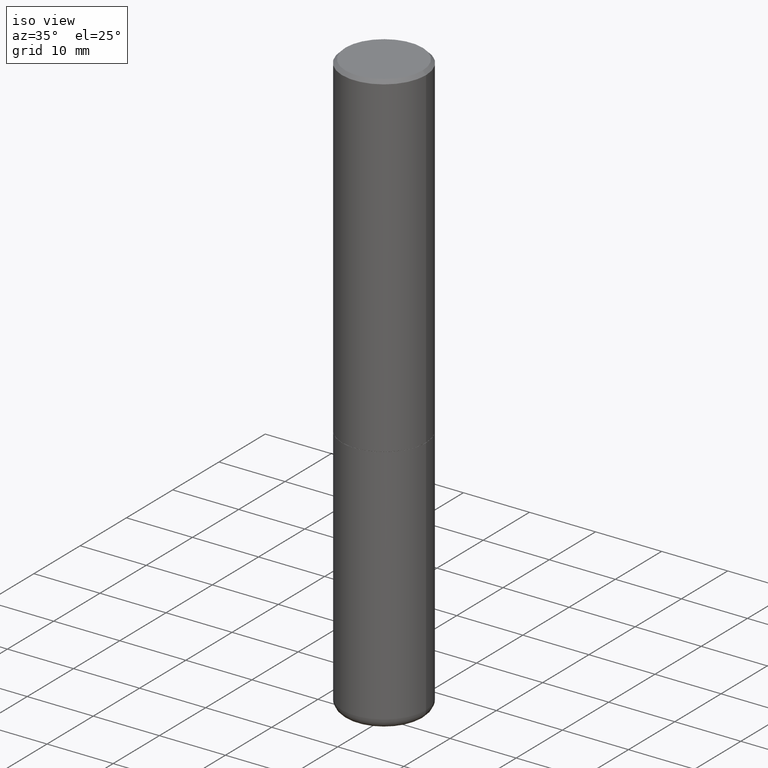
[diagram: clean part render]
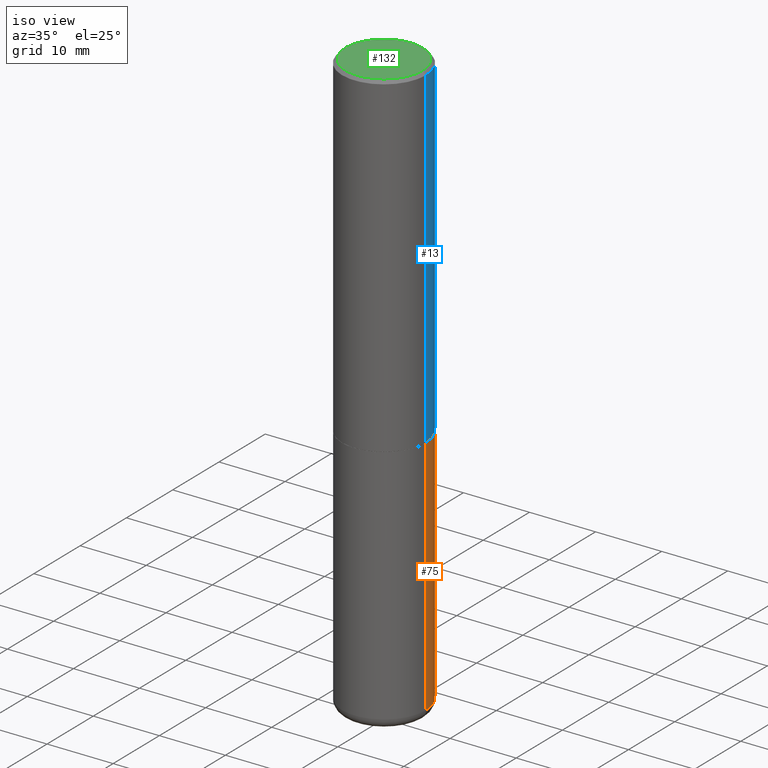
[diagram: same view with three faces highlighted in distinct colors, each labeled with its STEP entity id]
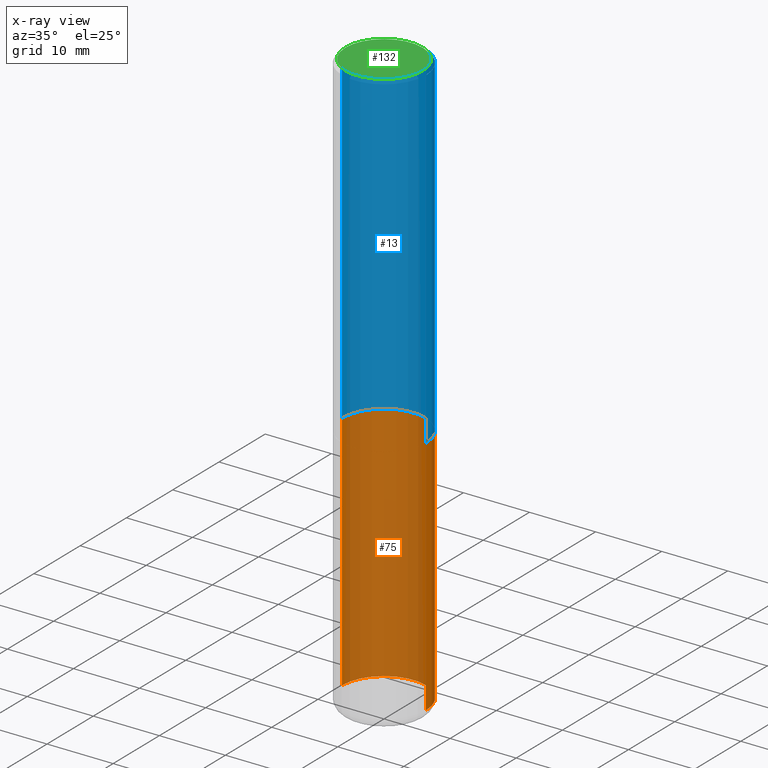
[diagram: x-ray of the same camera — body ghosted, the three highlighted faces saturated]
A machine part, iso view with three faces highlighted in distinct colors.
The next image is the same camera in x-ray (body ghosted, the three faces saturated) — at least one of them is partly hidden behind the body in this view.
Their STEP definitions:

[orange] entity #75 — the highlighted cylindrical surface (partial cylindrical patch) has radius 6.35 mm, axis along (-0, 0, 1).
#7 = DIRECTION ( 'NONE',  ( 1.000000000000000000, -6.982962677686266711E-15, 4.876176775795935793E-29 ) ) ;
#18 = ORIENTED_EDGE ( 'NONE', *, *, #418, .T. ) ;
#21 = DIRECTION ( 'NONE',  ( -2.445468806185136597E-29, 3.491481338843145583E-15, 1.000000000000000000 ) ) ;
#27 = DIRECTION ( 'NONE',  ( 1.000000000000000000, -6.982962677686266711E-15, 0.000000000000000000 ) ) ;
#28 = CARTESIAN_POINT ( 'NONE',  ( 8.412412693276869938E-29, -1.201069580562042103E-14, -3.439999999999999947 ) ) ;
#32 = DIRECTION ( 'NONE',  ( -2.445468806185136597E-29, 3.491481338843145583E-15, 1.000000000000000000 ) ) ;
#61 = CARTESIAN_POINT ( 'NONE',  ( -0.2500000000000000000, -7.720472402253106025E-15, -2.000000000000000000 ) ) ;
#75 = ADVANCED_FACE ( 'NONE', ( #322 ), #256, .T. ) ;
#78 = ORIENTED_EDGE ( 'NONE', *, *, #89, .T. ) ;
#89 = EDGE_CURVE ( 'NONE', #396, #331, #395, .T. ) ;
#102 = VERTEX_POINT ( 'NONE', #297 ) ;
#115 = ORIENTED_EDGE ( 'NONE', *, *, #372, .F. ) ;
#119 = CARTESIAN_POINT ( 'NONE',  ( 4.890937612370273194E-29, -6.982962677686291165E-15, -2.000000000000000000 ) ) ;
#177 = DIRECTION ( 'NONE',  ( -2.445468806185136877E-29, 3.491481338843145188E-15, 1.000000000000000000 ) ) ;
#190 = VECTOR ( 'NONE', #177, 39.37007874015748143 ) ;
#194 = CARTESIAN_POINT ( 'NONE',  ( -0.2500000000000000000, 1.776356839400250465E-15, -1.229733772563726445E-29 ) ) ;
#219 = CARTESIAN_POINT ( 'NONE',  ( 0.2500000000000000000, -1.745740669421566678E-15, 1.219044193948983948E-29 ) ) ;
#230 = DIRECTION ( 'NONE',  ( -2.445468806185136597E-29, 3.491481338843145583E-15, 1.000000000000000000 ) ) ;
#237 = ORIENTED_EDGE ( 'NONE', *, *, #309, .F. ) ;
#256 = CYLINDRICAL_SURFACE ( 'NONE', #302, 0.2500000000000000000 ) ;
#260 = CARTESIAN_POINT ( 'NONE',  ( -0.2499999999999999722, -1.023433896622016898E-14, -3.439999999999999947 ) ) ;
#294 = CARTESIAN_POINT ( 'NONE',  ( 0.000000000000000000, 0.000000000000000000, 0.000000000000000000 ) ) ;
#297 = CARTESIAN_POINT ( 'NONE',  ( 0.2499999999999999722, -1.375643647504198770E-14, -3.439999999999999947 ) ) ;
#302 = AXIS2_PLACEMENT_3D ( 'NONE', #294, #230, #7 ) ;
#308 = CIRCLE ( 'NONE', #370, 0.2500000000000000000 ) ;
#309 = EDGE_CURVE ( 'NONE', #102, #323, #376, .T. ) ;
#313 = CIRCLE ( 'NONE', #337, 0.2500000000000000000 ) ;
#322 = FACE_OUTER_BOUND ( 'NONE', #402, .T. ) ;
#323 = VERTEX_POINT ( 'NONE', #410 ) ;
#331 = VERTEX_POINT ( 'NONE', #61 ) ;
#337 = AXIS2_PLACEMENT_3D ( 'NONE', #119, #32, #27 ) ;
#340 = DIRECTION ( 'NONE',  ( -2.445468806185136877E-29, 3.491481338843145188E-15, 1.000000000000000000 ) ) ;
#356 = VECTOR ( 'NONE', #340, 39.37007874015748143 ) ;
#370 = AXIS2_PLACEMENT_3D ( 'NONE', #28, #21, #412 ) ;
#372 = EDGE_CURVE ( 'NONE', #323, #331, #313, .T. ) ;
#376 = LINE ( 'NONE', #219, #356 ) ;
#395 = LINE ( 'NONE', #194, #190 ) ;
#396 = VERTEX_POINT ( 'NONE', #260 ) ;
#402 = EDGE_LOOP ( 'NONE', ( #18, #78, #115, #237 ) ) ;
#410 = CARTESIAN_POINT ( 'NONE',  ( 0.2500000000000000000, -8.728703347107857054E-15, -2.000000000000000000 ) ) ;
#412 = DIRECTION ( 'NONE',  ( 1.000000000000000000, -6.982962677686270655E-15, 0.000000000000000000 ) ) ;
#418 = EDGE_CURVE ( 'NONE', #102, #396, #308, .T. ) ;

[blue] entity #13 — the highlighted cylindrical surface (partial cylindrical patch) has radius 6.35 mm, axis along (-0, 0, 1).
#13 = ADVANCED_FACE ( 'NONE', ( #180 ), #184, .T. ) ;
#15 = CARTESIAN_POINT ( 'NONE',  ( 4.890937612370287172E-31, -6.982962677686310098E-17, -0.02000000000000005593 ) ) ;
#23 = CARTESIAN_POINT ( 'NONE',  ( 4.888492143564087591E-29, -6.979471196347447369E-15, -1.998999999999999888 ) ) ;
#25 = AXIS2_PLACEMENT_3D ( 'NONE', #23, #311, #413 ) ;
#44 = DIRECTION ( 'NONE',  ( -2.445468806185136877E-29, 3.491481338843145188E-15, 1.000000000000000000 ) ) ;
#49 = EDGE_CURVE ( 'NONE', #298, #130, #113, .T. ) ;
#73 = LINE ( 'NONE', #172, #265 ) ;
#79 = ORIENTED_EDGE ( 'NONE', *, *, #167, .F. ) ;
#80 = AXIS2_PLACEMENT_3D ( 'NONE', #15, #154, #400 ) ;
#106 = VERTEX_POINT ( 'NONE', #317 ) ;
#113 = CIRCLE ( 'NONE', #80, 0.2499999999999999167 ) ;
#130 = VERTEX_POINT ( 'NONE', #139 ) ;
#138 = ORIENTED_EDGE ( 'NONE', *, *, #49, .F. ) ;
#139 = CARTESIAN_POINT ( 'NONE',  ( -0.2499999999999999167, 1.675911042644703182E-15, -0.02000000000000005593 ) ) ;
#154 = DIRECTION ( 'NONE',  ( -2.445468806185136597E-29, 3.491481338843145583E-15, 1.000000000000000000 ) ) ;
#167 = EDGE_CURVE ( 'NONE', #259, #298, #73, .T. ) ;
#172 = CARTESIAN_POINT ( 'NONE',  ( 0.2500000000000001110, -1.745740669421567467E-15, 1.219044193948984509E-29 ) ) ;
#180 = FACE_OUTER_BOUND ( 'NONE', #201, .T. ) ;
#182 = ORIENTED_EDGE ( 'NONE', *, *, #198, .T. ) ;
#184 = CYLINDRICAL_SURFACE ( 'NONE', #234, 0.2500000000000001110 ) ;
#197 = DIRECTION ( 'NONE',  ( -2.445468806185136877E-29, 3.491481338843145188E-15, 1.000000000000000000 ) ) ;
#198 = EDGE_CURVE ( 'NONE', #106, #130, #200, .T. ) ;
#200 = LINE ( 'NONE', #359, #414 ) ;
#201 = EDGE_LOOP ( 'NONE', ( #315, #182, #138, #79 ) ) ;
#209 = CIRCLE ( 'NONE', #25, 0.2500000000000002776 ) ;
#211 = DIRECTION ( 'NONE',  ( -2.445468806185136597E-29, 3.491481338843145583E-15, 1.000000000000000000 ) ) ;
#234 = AXIS2_PLACEMENT_3D ( 'NONE', #269, #211, #398 ) ;
#259 = VERTEX_POINT ( 'NONE', #329 ) ;
#265 = VECTOR ( 'NONE', #44, 39.37007874015748143 ) ;
#269 = CARTESIAN_POINT ( 'NONE',  ( 0.000000000000000000, 0.000000000000000000, 0.000000000000000000 ) ) ;
#279 = CARTESIAN_POINT ( 'NONE',  ( 0.2499999999999999167, -1.784954126219745400E-15, -0.02000000000000005593 ) ) ;
#298 = VERTEX_POINT ( 'NONE', #279 ) ;
#299 = EDGE_CURVE ( 'NONE', #259, #106, #209, .T. ) ;
#311 = DIRECTION ( 'NONE',  ( -2.445468806185136597E-29, 3.491481338843145583E-15, 1.000000000000000000 ) ) ;
#315 = ORIENTED_EDGE ( 'NONE', *, *, #299, .T. ) ;
#317 = CARTESIAN_POINT ( 'NONE',  ( -0.2500000000000002776, -1.748293572161900530E-15, -1.998999999999999888 ) ) ;
#329 = CARTESIAN_POINT ( 'NONE',  ( 0.2500000000000002776, -8.725211865769015625E-15, -1.998999999999999888 ) ) ;
#359 = CARTESIAN_POINT ( 'NONE',  ( -0.2500000000000001110, 1.776356839400251254E-15, -1.229733772563727006E-29 ) ) ;
#398 = DIRECTION ( 'NONE',  ( 1.000000000000000000, -6.982962677686266711E-15, 4.876176775795935793E-29 ) ) ;
#400 = DIRECTION ( 'NONE',  ( 1.000000000000000000, -6.982962677686267499E-15, 0.000000000000000000 ) ) ;
#413 = DIRECTION ( 'NONE',  ( 1.000000000000000000, -6.982962677686266711E-15, 0.000000000000000000 ) ) ;
#414 = VECTOR ( 'NONE', #197, 39.37007874015748143 ) ;

[green] entity #132 — the highlighted planar face has unit normal (0, -0, -1).
#1 = CARTESIAN_POINT ( 'NONE',  ( 2.087702828670439639E-46, -2.980686340760894400E-32, -8.537024980200822558E-18 ) ) ;
#16 = EDGE_LOOP ( 'NONE', ( #120, #328 ) ) ;
#37 = DIRECTION ( 'NONE',  ( 1.000000000000000000, -6.982962677686267499E-15, 4.876225828469310563E-29 ) ) ;
#39 = DIRECTION ( 'NONE',  ( -1.000000000000000000, 6.982962677686265922E-15, -4.876176775795935793E-29 ) ) ;
#46 = AXIS2_PLACEMENT_3D ( 'NONE', #108, #227, #39 ) ;
#58 = EDGE_CURVE ( 'NONE', #245, #140, #241, .T. ) ;
#77 = CARTESIAN_POINT ( 'NONE',  ( 2.087702828670439639E-46, -2.980686340760894400E-32, -8.537024980200822558E-18 ) ) ;
#99 = FACE_OUTER_BOUND ( 'NONE', #16, .T. ) ;
#108 = CARTESIAN_POINT ( 'NONE',  ( 1.606081415867840870E-15, 0.2299999999999999267, -8.073092204240237214E-16 ) ) ;
#120 = ORIENTED_EDGE ( 'NONE', *, *, #58, .T. ) ;
#132 = ADVANCED_FACE ( 'NONE', ( #99 ), #327, .F. ) ;
#140 = VERTEX_POINT ( 'NONE', #397 ) ;
#169 = CARTESIAN_POINT ( 'NONE',  ( -0.2299999999999999267, 1.640996229256272125E-15, -8.537024980212177841E-18 ) ) ;
#175 = DIRECTION ( 'NONE',  ( -2.445468806185136597E-29, 3.491481338843145583E-15, 1.000000000000000000 ) ) ;
#205 = EDGE_CURVE ( 'NONE', #140, #245, #336, .T. ) ;
#224 = AXIS2_PLACEMENT_3D ( 'NONE', #1, #175, #325 ) ;
#227 = DIRECTION ( 'NONE',  ( 2.438088387897960049E-29, -3.491481338843145188E-15, -1.000000000000000000 ) ) ;
#241 = CIRCLE ( 'NONE', #224, 0.2299999999999999267 ) ;
#245 = VERTEX_POINT ( 'NONE', #169 ) ;
#247 = AXIS2_PLACEMENT_3D ( 'NONE', #77, #319, #37 ) ;
#319 = DIRECTION ( 'NONE',  ( -2.445468806185136597E-29, 3.491481338843145583E-15, 1.000000000000000000 ) ) ;
#325 = DIRECTION ( 'NONE',  ( 1.000000000000000000, -6.982962677686267499E-15, 4.876225828469310563E-29 ) ) ;
#327 = PLANE ( 'NONE',  #46 ) ;
#328 = ORIENTED_EDGE ( 'NONE', *, *, #205, .T. ) ;
#336 = CIRCLE ( 'NONE', #247, 0.2299999999999999267 ) ;
#397 = CARTESIAN_POINT ( 'NONE',  ( 0.2299999999999999267, -1.681434332853598617E-15, -8.537024980189327067E-18 ) ) ;